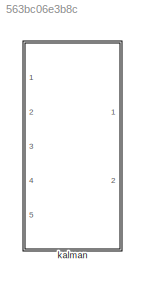
MODEL slx_563bc06e3b8c
KIND model
CONFIG AbsTol = auto
CONFIG FixedStep = auto
CONFIG MaxStep = auto
CONFIG MinStep = auto
CONFIG RelTol = 1e-3
CONFIG SampleTimeConstraint = Unconstrained
CONFIG Solver = VariableStepAuto
CONFIG SolverMode = Auto
CONFIG SolverName = VariableStepAuto
CONFIG StartTime = 0.0
CONFIG StopTime = 10.0
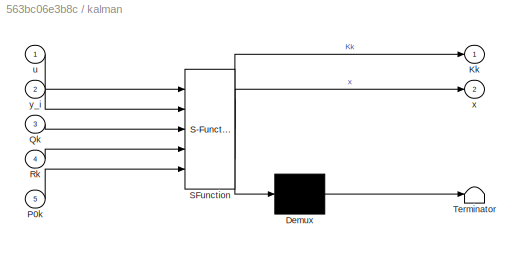
BLOCK [SubSystem] kalman
  ErrorFcn = Stateflow.Translate.translate
  PermitHierarchicalResolution = ExplicitOnly
  Ports = [5, 2]
  RequestExecContextInheritance = off
  SFBlockType = MATLAB Function
  TreatAsAtomicUnit = on
  Variant = off
BLOCK [Demux] kalman/ Demux 
  Outputs = 1
  Ports = [1, 1]
BLOCK [S-Function] kalman/ SFunction 
  EnableBusSupport = on
  FunctionName = sf_sfun
  Parameters = Ad,Bd,Cd_kalman,x0
  PortCounts = [5 3]
  Ports = [5, 3]
  SFunctionDeploymentMode = off
  Tag = Stateflow S-Function kalman_filter 4
BLOCK [Terminator] kalman/ Terminator 
BLOCK [Outport] kalman/Kk
  IconDisplay = Port number
BLOCK [Inport] kalman/P0k
  IconDisplay = Port number
  Port = 5
BLOCK [Inport] kalman/Qk
  IconDisplay = Port number
  Port = 3
BLOCK [Inport] kalman/Rk
  IconDisplay = Port number
  Port = 4
BLOCK [Inport] kalman/u
  IconDisplay = Port number
BLOCK [Outport] kalman/x
  IconDisplay = Port number
  Port = 2
BLOCK [Inport] kalman/y_i
  IconDisplay = Port number
  Port = 2
CHART kalman states=1 transitions=1
  STATE_LABEL 'eML_blk_kernel()'
  STATE_LABEL 'SCRIPT:\nfunction [Kk, x] = fcn(u, y_i, Qk, Rk, Ad, Bd, Cd_kalman, x0, P0k)\n%#codegen\npersistent x_p P_p\n%% Initialisierung im ersten Zeitschritt wird nur einmal aufgerufen\nif isempty(x_p)\n    x_p = zeros(4,1);\n    x = zeros(4,1);\n% korrekte Initialisierung\n%    x_p = x0;    \n%    x = x_p;\n    P_p = P0k;\n    Kk = zeros(4,1); \nelse\n%% Discrete Time update: prediction\nx = Ad*x_p + Bd * u;\nP = Ad*P_p*...<+186ch>'
